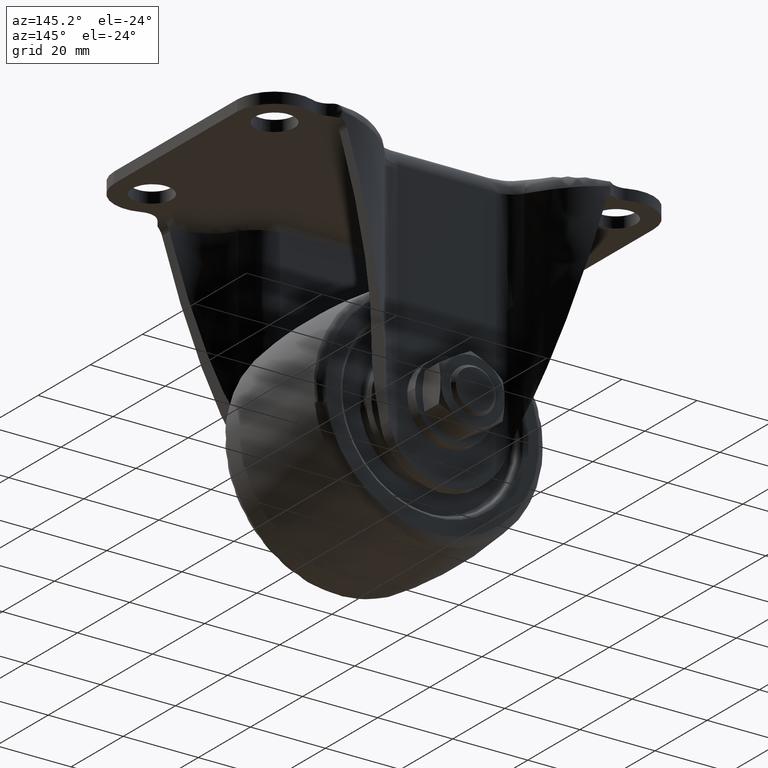
[diagram: clean part render]
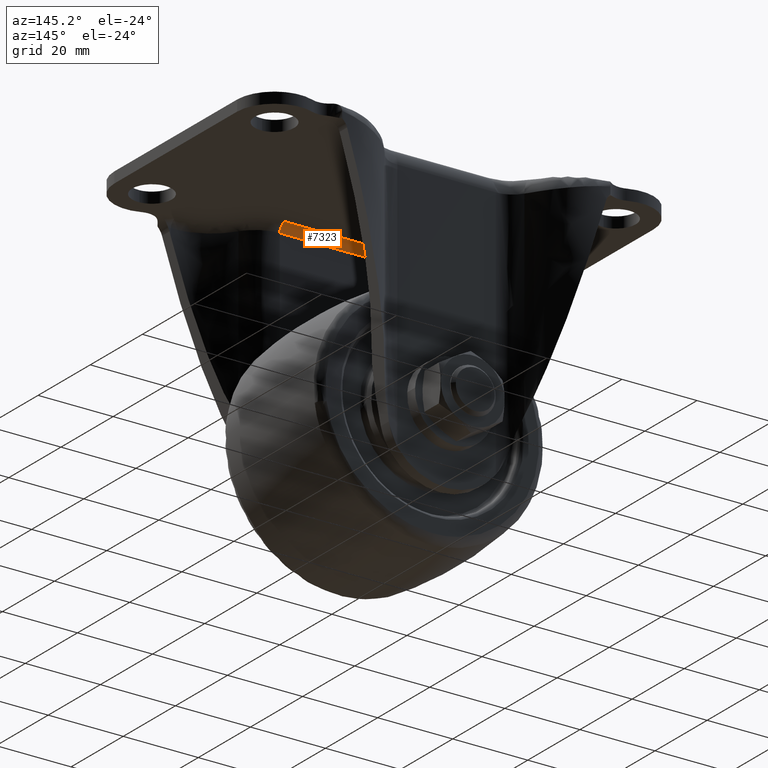
[diagram: same view with one face highlighted and labeled with its STEP entity id]
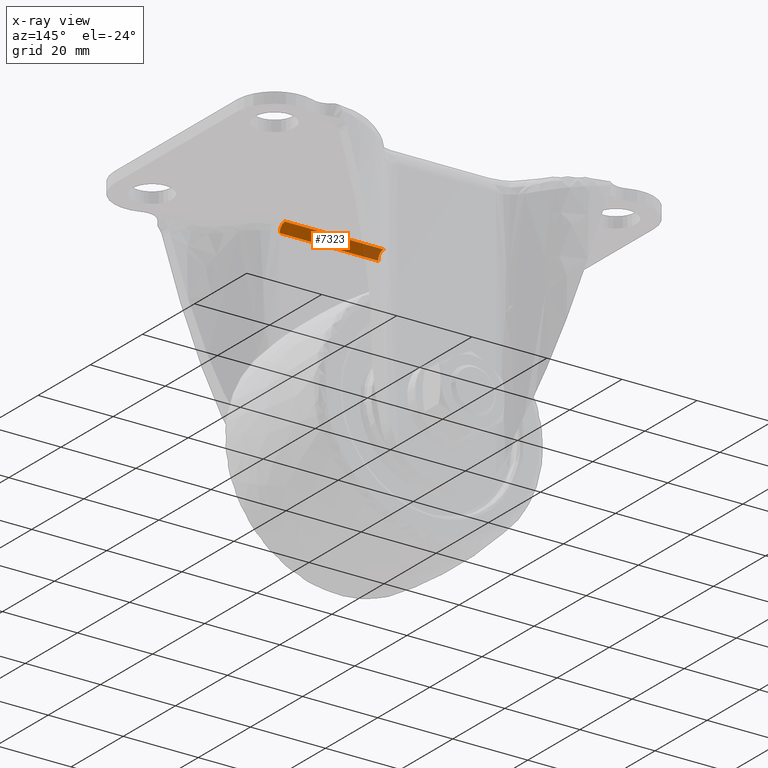
[diagram: x-ray of the same camera — body ghosted, the highlighted face saturated]
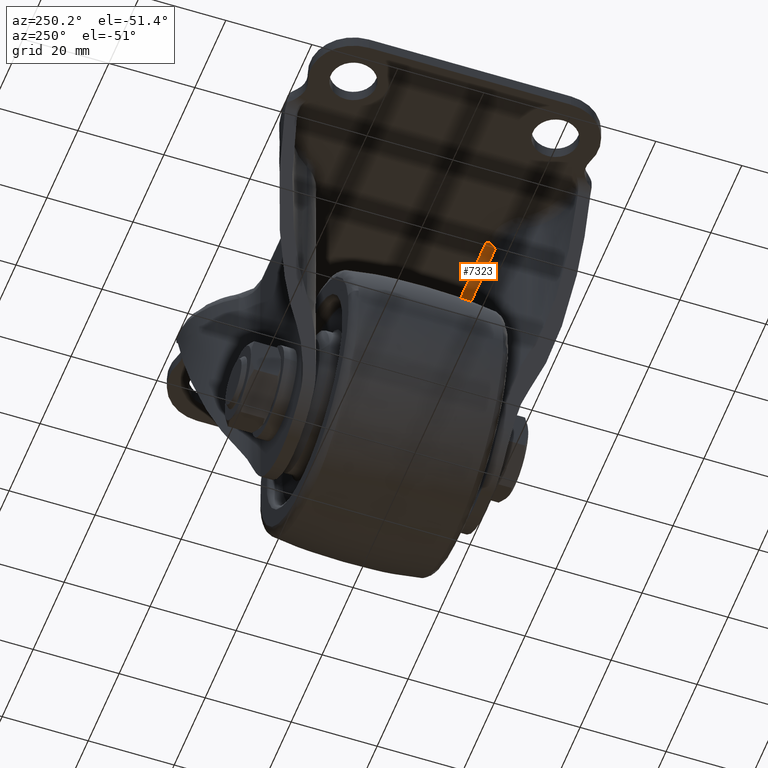
[diagram: same view with one face highlighted and labeled with its STEP entity id]
A machine part, auxiliary view. The second image highlights one B-rep face of the part: STEP entity #7323.
The next image is the same camera in x-ray: the body ghosted, the highlighted face saturated — about 16% of this face is hidden behind the body in this view.
A second angle (auxiliary view) of the same face is appended — the face is thin or edge-on in the first view.
In plain terms, the highlighted face is a freeform B-spline surface patch.
Its self-contained STEP definition (entity closure, byte-faithful):
#4817=CARTESIAN_POINT('',(-13.112339000000080,-21.100000000000001,-4.900000000000000));
#4818=VERTEX_POINT('',#4817);
#4824=CARTESIAN_POINT('',(13.112529000000020,-21.100000000000001,-4.900000000000000));
#4825=VERTEX_POINT('',#4824);
#4826=CARTESIAN_POINT('',(-13.112339000000080,-21.100000000000001,-4.900000000000000));
#4827=CARTESIAN_POINT('',(13.112529000000020,-21.100000000000001,-4.900000000000000));
#4828=QUASI_UNIFORM_CURVE('',1,(#4826,#4827),.UNSPECIFIED.,.F.,.U.);
#4829=EDGE_CURVE('',#4818,#4825,#4828,.T.);
#7252=CARTESIAN_POINT('',(-13.112339139850160,-19.100000000000001,-2.900000000000000));
#7253=VERTEX_POINT('',#7252);
#7254=CARTESIAN_POINT('',(-13.112339139850160,-19.100000000000001,-2.900000000000000));
#7255=CARTESIAN_POINT('',(-13.112339000000079,-21.099999999999994,-2.900000000000000));
#7256=CARTESIAN_POINT('',(-13.112339000000080,-21.099999999999991,-4.900000000000000));
#7264=(BOUNDED_CURVE()B_SPLINE_CURVE(2,(#7254,#7255,#7256),.UNSPECIFIED.,.F.,.U.)CURVE()GEOMETRIC_REPRESENTATION_ITEM()QUASI_UNIFORM_CURVE()RATIONAL_B_SPLINE_CURVE((1.0,0.707106781186548,1.0))REPRESENTATION_ITEM(''));
#7265=EDGE_CURVE('',#7253,#4818,#7264,.T.);
#7285=CARTESIAN_POINT('',(13.768150703496280,-19.012761225269330,-2.901903556836285));
#7286=CARTESIAN_POINT('',(-13.784351385933819,-19.012761225269330,-2.901903556836285));
#7287=CARTESIAN_POINT('',(13.768150703496275,-21.252120528918070,-2.804131018128029));
#7288=CARTESIAN_POINT('',(-13.784351385933821,-21.252120528918070,-2.804131018128029));
#7289=CARTESIAN_POINT('',(13.768150703496271,-21.095085826463833,-5.040116184087038));
#7290=CARTESIAN_POINT('',(-13.784351385933824,-21.095085826463833,-5.040116184087038));
#7298=(BOUNDED_SURFACE()B_SPLINE_SURFACE(1,2,((#7285,#7287,#7289),(#7286,#7288,#7290)),.UNSPECIFIED.,.F.,.F.,.U.)B_SPLINE_SURFACE_WITH_KNOTS((2,2),(3,3),(0.0,27.552502089430099),(0.0,3.583485079683959),.UNSPECIFIED.)GEOMETRIC_REPRESENTATION_ITEM()RATIONAL_B_SPLINE_SURFACE(((1.0,0.664513898535122,0.996233561259061),(1.0,0.664513898535122,0.996233561259061)))REPRESENTATION_ITEM('')SURFACE());
#7299=CARTESIAN_POINT('',(13.112529000000020,-19.100000000000001,-2.900000000000000));
#7300=VERTEX_POINT('',#7299);
#7301=CARTESIAN_POINT('',(13.112529000000020,-19.100000000000001,-2.900000000000000));
#7302=CARTESIAN_POINT('',(13.112529000000020,-21.100000000000009,-2.900000000000000));
#7303=CARTESIAN_POINT('',(13.112529000000020,-21.100000000000001,-4.900000000000000));
#7311=(BOUNDED_CURVE()B_SPLINE_CURVE(2,(#7301,#7302,#7303),.UNSPECIFIED.,.F.,.U.)CURVE()GEOMETRIC_REPRESENTATION_ITEM()QUASI_UNIFORM_CURVE()RATIONAL_B_SPLINE_CURVE((1.0,0.707106781186548,1.0))REPRESENTATION_ITEM(''));
#7312=EDGE_CURVE('',#7300,#4825,#7311,.T.);
#7313=ORIENTED_EDGE('',*,*,#7312,.T.);
#7314=ORIENTED_EDGE('',*,*,#4829,.F.);
#7315=ORIENTED_EDGE('',*,*,#7265,.F.);
#7316=CARTESIAN_POINT('',(13.112529000000020,-19.100000000000001,-2.900000000000000));
#7317=CARTESIAN_POINT('',(-13.112339139850160,-19.100000000000001,-2.900000000000000));
#7318=QUASI_UNIFORM_CURVE('',1,(#7316,#7317),.UNSPECIFIED.,.F.,.U.);
#7319=EDGE_CURVE('',#7300,#7253,#7318,.T.);
#7320=ORIENTED_EDGE('',*,*,#7319,.F.);
#7321=EDGE_LOOP('',(#7313,#7314,#7315,#7320));
#7322=FACE_OUTER_BOUND('',#7321,.T.);
#7323=ADVANCED_FACE('',(#7322),#7298,.F.);